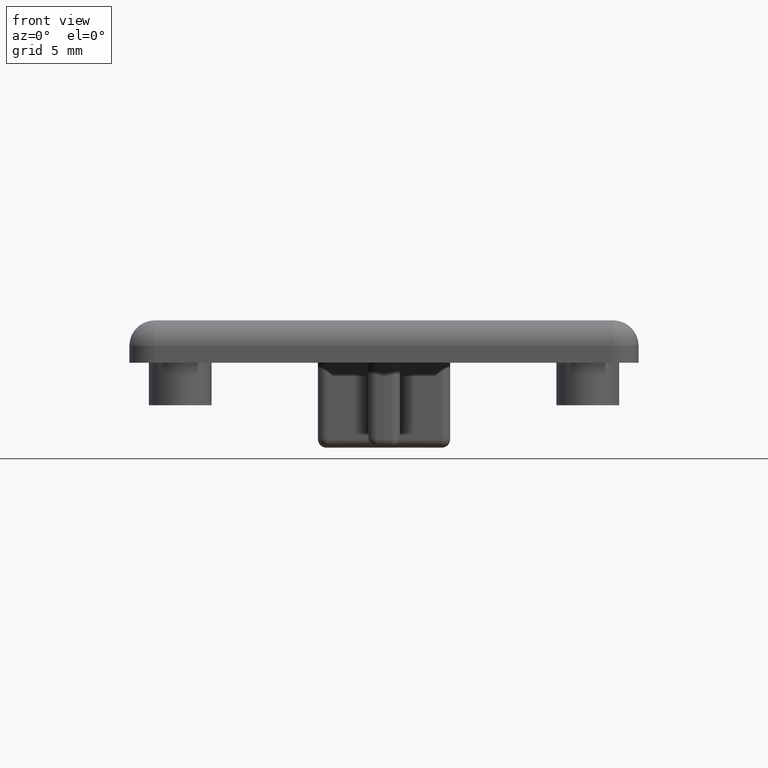
[diagram: clean part render]
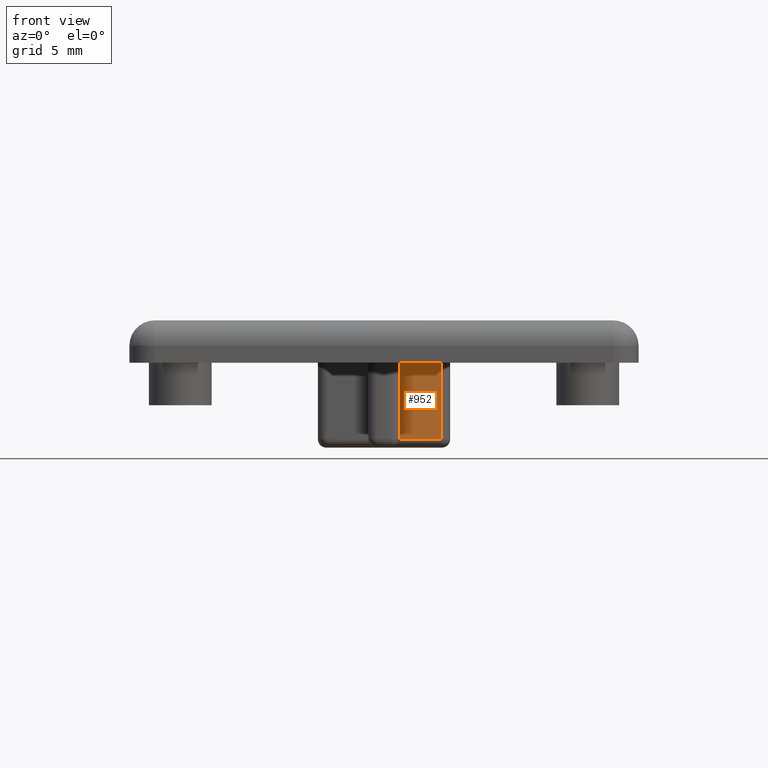
[diagram: same view with one face highlighted and labeled with its STEP entity id]
A machine part, front view. The second image highlights one B-rep face of the part: STEP entity #952.
In plain terms, the highlighted planar face has unit normal (0, -1, 0).
Its self-contained STEP definition (entity closure, byte-faithful):
#25=PLANE('',#1083);
#62=LINE('',#1573,#129);
#73=LINE('',#1615,#140);
#84=LINE('',#1650,#151);
#86=LINE('',#1653,#153);
#129=VECTOR('',#1243,10.);
#140=VECTOR('',#1292,10.);
#151=VECTOR('',#1341,10.);
#153=VECTOR('',#1345,10.);
#247=FACE_OUTER_BOUND('',#312,.T.);
#312=EDGE_LOOP('',(#773,#774,#775,#776));
#443=VERTEX_POINT('',#1566);
#445=VERTEX_POINT('',#1571);
#456=VERTEX_POINT('',#1608);
#462=VERTEX_POINT('',#1649);
#535=EDGE_CURVE('',#445,#443,#62,.T.);
#557=EDGE_CURVE('',#443,#456,#73,.T.);
#575=EDGE_CURVE('',#462,#456,#84,.T.);
#577=EDGE_CURVE('',#462,#445,#86,.T.);
#773=ORIENTED_EDGE('',*,*,#535,.F.);
#774=ORIENTED_EDGE('',*,*,#577,.F.);
#775=ORIENTED_EDGE('',*,*,#575,.T.);
#776=ORIENTED_EDGE('',*,*,#557,.F.);
#952=ADVANCED_FACE('',(#247),#25,.T.);
#1083=AXIS2_PLACEMENT_3D('',#1652,#1343,#1344);
#1243=DIRECTION('',(0.,0.,-1.));
#1292=DIRECTION('',(-1.,0.,0.));
#1341=DIRECTION('',(0.,0.,-1.));
#1343=DIRECTION('center_axis',(0.,-1.,0.));
#1344=DIRECTION('ref_axis',(-1.,0.,0.));
#1345=DIRECTION('',(1.,0.,0.));
#1566=CARTESIAN_POINT('',(3.37333292160572,-0.925,-4.5));
#1571=CARTESIAN_POINT('',(3.37333292160572,-0.925,0.));
#1573=CARTESIAN_POINT('',(3.37333292160572,-0.925,0.));
#1608=CARTESIAN_POINT('',(0.925,-0.925,-4.5));
#1615=CARTESIAN_POINT('',(1.89435840062004,-0.925,-4.5));
#1649=CARTESIAN_POINT('',(0.925,-0.925,0.));
#1650=CARTESIAN_POINT('',(0.925,-0.925,0.));
#1652=CARTESIAN_POINT('Origin',(3.78871680124023,-0.925,0.));
#1653=CARTESIAN_POINT('',(3.21797646653154,-0.925,0.));